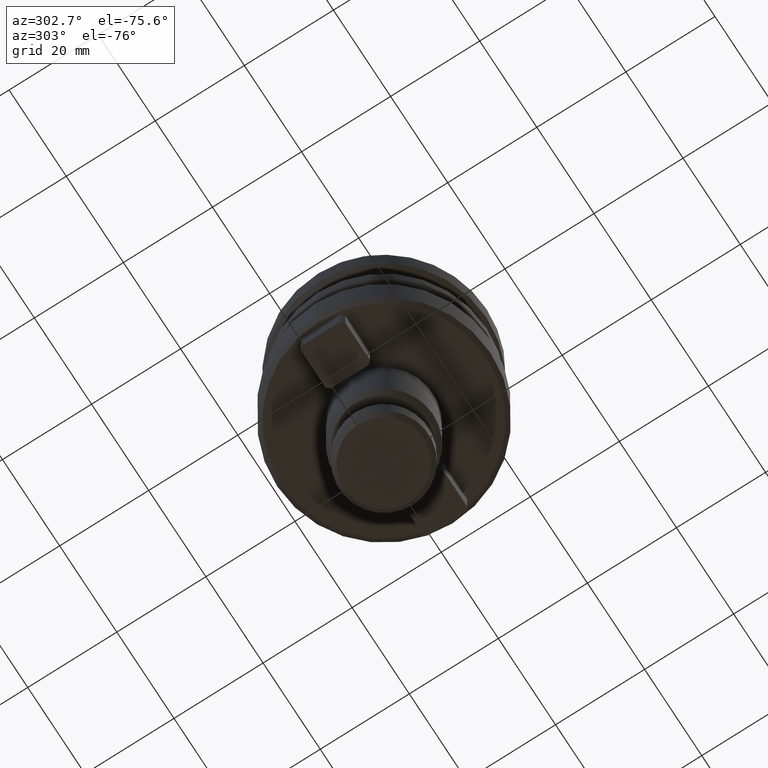
[diagram: clean part render]
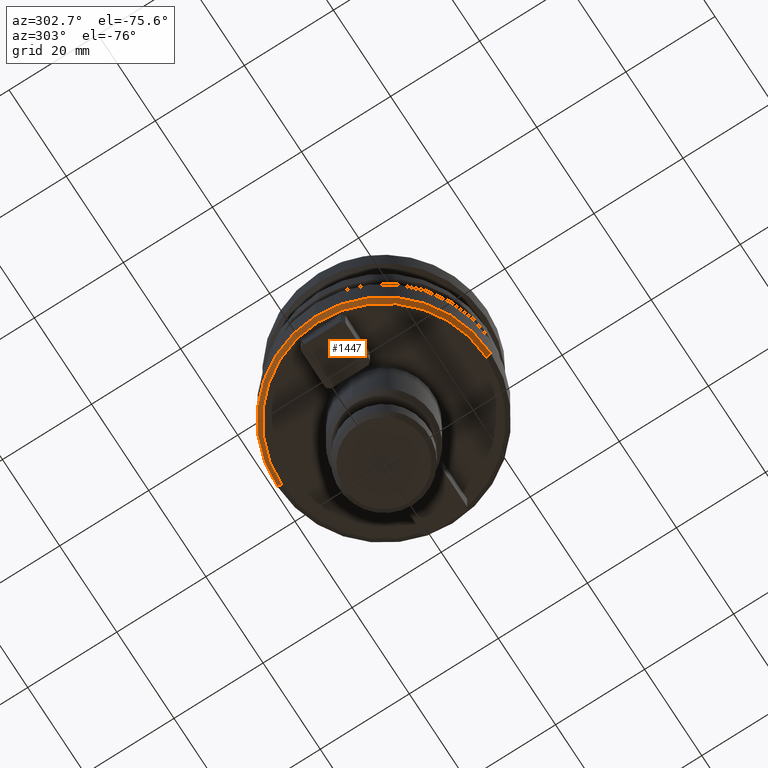
[diagram: same view with one face highlighted and labeled with its STEP entity id]
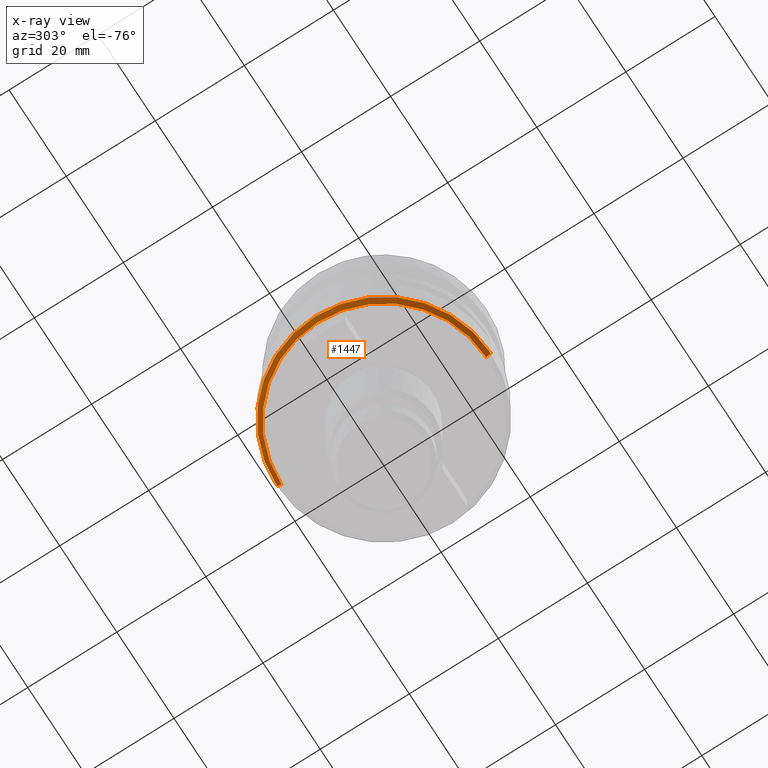
[diagram: x-ray of the same camera — body ghosted, the highlighted face saturated]
A machine part, auxiliary view. The second image highlights one B-rep face of the part: STEP entity #1447.
The next image is the same camera in x-ray: the body ghosted, the highlighted face saturated — about 0% of this face is hidden behind the body in this view.
In plain terms, the highlighted conical surface has half-angle 45 deg.
Its self-contained STEP definition (entity closure, byte-faithful):
#22 = EDGE_CURVE ( 'NONE', #232, #3268, #1318, .T. ) ;
#41 = ORIENTED_EDGE ( 'NONE', *, *, #22, .T. ) ;
#42 = AXIS2_PLACEMENT_3D ( 'NONE', #1981, #1984, #1986 ) ;
#66 = CIRCLE ( 'NONE', #42, 24.00000000000000000 ) ;
#89 = ORIENTED_EDGE ( 'NONE', *, *, #2447, .F. ) ;
#122 = CONICAL_SURFACE ( 'NONE', #2763, 23.00000000000000000, 0.7853981633974482800 ) ;
#147 = CIRCLE ( 'NONE', #1774, 24.00000000000000000 ) ;
#211 = VERTEX_POINT ( 'NONE', #1400 ) ;
#222 = ORIENTED_EDGE ( 'NONE', *, *, #714, .T. ) ;
#232 = VERTEX_POINT ( 'NONE', #1494 ) ;
#482 = FACE_OUTER_BOUND ( 'NONE', #1773, .T. ) ;
#589 = CARTESIAN_POINT ( 'NONE',  ( 0.0000000000000000000, -24.00000000000000700, -39.00000000000000000 ) ) ;
#608 = CARTESIAN_POINT ( 'NONE',  ( 0.0000000000000000000, -23.00000000000000000, -40.00000000000000700 ) ) ;
#622 = VERTEX_POINT ( 'NONE', #1907 ) ;
#627 = EDGE_CURVE ( 'NONE', #3268, #1504, #66, .T. ) ;
#651 = DIRECTION ( 'NONE',  ( 0.0000000000000000000, -1.508455196501571700E-016, 1.000000000000000000 ) ) ;
#674 = ORIENTED_EDGE ( 'NONE', *, *, #1474, .F. ) ;
#684 = CARTESIAN_POINT ( 'NONE',  ( -24.00000000000000000, 2.939152317953647900E-015, -39.00000000000000000 ) ) ;
#714 = EDGE_CURVE ( 'NONE', #1504, #211, #147, .T. ) ;
#1229 = DIRECTION ( 'NONE',  ( 0.0000000000000000000, -0.7071067811865475700, 0.7071067811865474600 ) ) ;
#1318 = LINE ( 'NONE', #608, #3339 ) ;
#1400 = CARTESIAN_POINT ( 'NONE',  ( 2.939152317953647100E-015, 23.99999999999999300, -39.00000000000000000 ) ) ;
#1447 = ADVANCED_FACE ( 'NONE', ( #482 ), #122, .T. ) ;
#1474 = EDGE_CURVE ( 'NONE', #232, #622, #3001, .T. ) ;
#1494 = CARTESIAN_POINT ( 'NONE',  ( 0.0000000000000000000, -22.99999999999996400, -40.00000000000003600 ) ) ;
#1504 = VERTEX_POINT ( 'NONE', #684 ) ;
#1587 = DIRECTION ( 'NONE',  ( 0.0000000000000000000, -1.000000000000000000, 0.0000000000000000000 ) ) ;
#1592 = DIRECTION ( 'NONE',  ( 8.659560562354932900E-017, 0.7071067811865473500, 0.7071067811865477900 ) ) ;
#1627 = CARTESIAN_POINT ( 'NONE',  ( 2.816687638038912400E-015, 23.00000000000000000, -39.99999999999999300 ) ) ;
#1630 = DIRECTION ( 'NONE',  ( -0.0000000000000000000, 1.508455196501571700E-016, -1.000000000000000000 ) ) ;
#1773 = EDGE_LOOP ( 'NONE', ( #89, #674, #41, #2261, #222 ) ) ;
#1774 = AXIS2_PLACEMENT_3D ( 'NONE', #2024, #2025, #2029 ) ;
#1885 = VECTOR ( 'NONE', #1592, 999.9999999999998900 ) ;
#1890 = LINE ( 'NONE', #1627, #1885 ) ;
#1907 = CARTESIAN_POINT ( 'NONE',  ( 2.877919977996278300E-015, 22.99999999999996400, -40.00000000000003600 ) ) ;
#1981 = CARTESIAN_POINT ( 'NONE',  ( 0.0000000000000000000, 0.0000000000000000000, -39.00000000000000000 ) ) ;
#1984 = DIRECTION ( 'NONE',  ( -0.0000000000000000000, -0.0000000000000000000, -1.000000000000000000 ) ) ;
#1986 = DIRECTION ( 'NONE',  ( 1.000000000000000000, 0.0000000000000000000, 0.0000000000000000000 ) ) ;
#2024 = CARTESIAN_POINT ( 'NONE',  ( 0.0000000000000000000, 0.0000000000000000000, -39.00000000000000000 ) ) ;
#2025 = DIRECTION ( 'NONE',  ( -0.0000000000000000000, -0.0000000000000000000, -1.000000000000000000 ) ) ;
#2029 = DIRECTION ( 'NONE',  ( 1.000000000000000000, 0.0000000000000000000, 0.0000000000000000000 ) ) ;
#2100 = CARTESIAN_POINT ( 'NONE',  ( 0.0000000000000000000, 0.0000000000000000000, -40.00000000000000000 ) ) ;
#2261 = ORIENTED_EDGE ( 'NONE', *, *, #627, .T. ) ;
#2447 = EDGE_CURVE ( 'NONE', #622, #211, #1890, .T. ) ;
#2617 = AXIS2_PLACEMENT_3D ( 'NONE', #2746, #1630, #1587 ) ;
#2746 = CARTESIAN_POINT ( 'NONE',  ( 0.0000000000000000000, 5.233505283446285800E-030, -40.00000000000003600 ) ) ;
#2763 = AXIS2_PLACEMENT_3D ( 'NONE', #2100, #651, #3161 ) ;
#3001 = CIRCLE ( 'NONE', #2617, 22.99999999999996400 ) ;
#3161 = DIRECTION ( 'NONE',  ( 0.0000000000000000000, -1.000000000000000000, -3.016910393003142900E-016 ) ) ;
#3268 = VERTEX_POINT ( 'NONE', #589 ) ;
#3339 = VECTOR ( 'NONE', #1229, 1000.000000000000000 ) ;